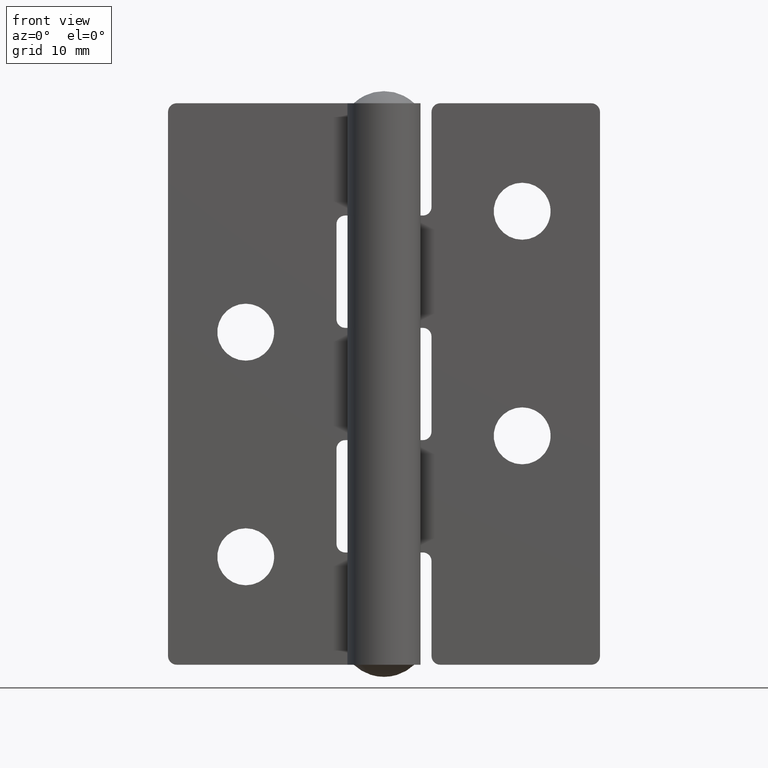
[diagram: clean part render]
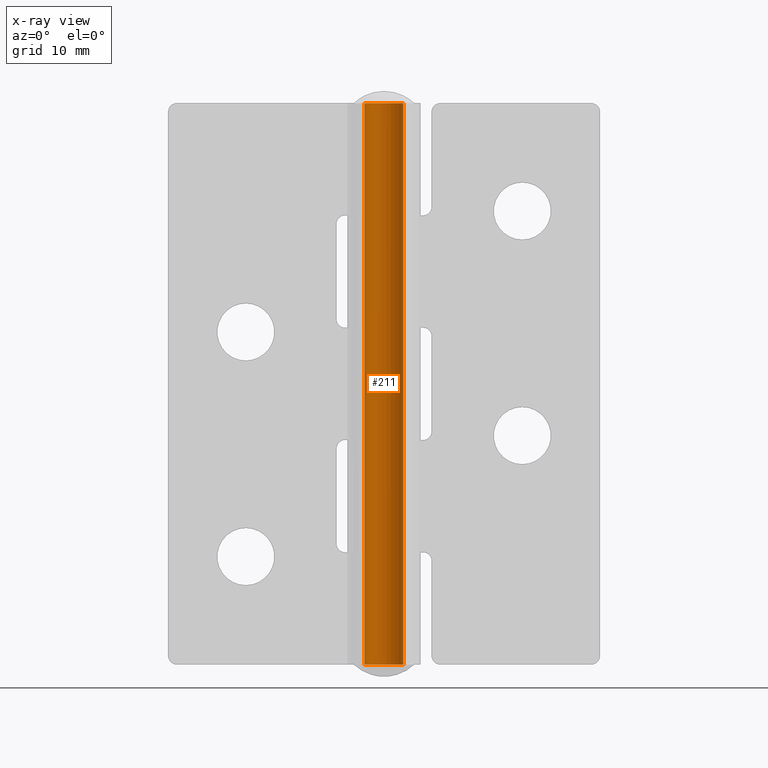
[diagram: x-ray — body ghosted, one internal face saturated and labeled with its STEP entity id]
A machine part, front view, then the same camera in x-ray: the body is ghosted and one INTERNAL B-rep face — a face not visible from any outside direction — is saturated and labeled: STEP entity #211.
In plain terms, the highlighted cylindrical surface (edge-blend (fillet) strip) has radius 2.25 mm, axis along (0, 0, 1).
Its self-contained STEP definition (entity closure, byte-faithful):
#211=ADVANCED_FACE('',(#848),#847,.T.);
#847=CYLINDRICAL_SURFACE('',#1230,2.25000000000E+00);
#848=FACE_OUTER_BOUND('',#1231,.T.);
#1227=CARTESIAN_POINT('',(0.00000000000E+00,0.00000000000E+00,0.00000000000E+00));
#1228=DIRECTION('',(0.00000000000E+00,-0.00000000000E+00,1.00000000000E+00));
#1229=DIRECTION('',(1.00000000000E+00,-0.00000000000E+00,-0.00000000000E+00));
#1230=AXIS2_PLACEMENT_3D('',#1227,#1228,#1229);
#1231=EDGE_LOOP('',(#1609,#1610,#1611,#1612));
#1609=ORIENTED_EDGE('',*,*,#1808,.T.);
#1610=ORIENTED_EDGE('',*,*,#1809,.F.);
#1611=ORIENTED_EDGE('',*,*,#1803,.F.);
#1612=ORIENTED_EDGE('',*,*,#1810,.T.);
#1803=EDGE_CURVE('',#2977,#2978,#2979,.T.);
#1808=EDGE_CURVE('',#3006,#3005,#3013,.T.);
#1809=EDGE_CURVE('',#2978,#3005,#3019,.T.);
#1810=EDGE_CURVE('',#2977,#3006,#3025,.T.);
#2977=VERTEX_POINT('',#3759);
#2978=VERTEX_POINT('',#3760);
#2979=CIRCLE('',#3764,2.25000000000E+00);
#3005=VERTEX_POINT('',#3779);
#3006=VERTEX_POINT('',#3780);
#3013=CIRCLE('',#3788,2.25000000000E+00);
#3019=(BOUNDED_CURVE() B_SPLINE_CURVE(1,(#3789,#3790),.UNSPECIFIED.,.F.,.F.) B_SPLINE_CURVE_WITH_KNOTS((2,2),(8.33333332085E-02,9.16666666563E-01),.UNSPECIFIED.) CURVE() GEOMETRIC_REPRESENTATION_ITEM() RATIONAL_B_SPLINE_CURVE((1.00000000000E+00,1.00000000000E+00)) REPRESENTATION_ITEM('') );
#3025=(BOUNDED_CURVE() B_SPLINE_CURVE(1,(#3791,#3792),.UNSPECIFIED.,.F.,.F.) B_SPLINE_CURVE_WITH_KNOTS((2,2),(8.33333333333E-02,9.16666666667E-01),.UNSPECIFIED.) CURVE() GEOMETRIC_REPRESENTATION_ITEM() RATIONAL_B_SPLINE_CURVE((7.50000000000E-01,7.50000000000E-01)) REPRESENTATION_ITEM('') );
#3759=CARTESIAN_POINT('',(-2.25000000000E+00,0.00000000000E+00,1.40000000000E+00));
#3760=CARTESIAN_POINT('',(2.25000000000E+00,1.48029736617E-16,1.40000000000E+00));
#3761=CARTESIAN_POINT('',(0.00000000000E+00,0.00000000000E+00,1.40000000000E+00));
#3762=DIRECTION('',(-0.00000000000E+00,0.00000000000E+00,-1.00000000000E+00));
#3763=DIRECTION('',(-1.00000000000E+00,-1.22460635382E-16,0.00000000000E+00));
#3764=AXIS2_PLACEMENT_3D('',#3761,#3762,#3763);
#3779=CARTESIAN_POINT('',(2.25000000000E+00,1.48029736617E-16,6.64000000000E+01));
#3780=CARTESIAN_POINT('',(-2.25000000000E+00,0.00000000000E+00,6.64000000000E+01));
#3785=CARTESIAN_POINT('',(0.00000000000E+00,0.00000000000E+00,6.64000000000E+01));
#3786=DIRECTION('',(-0.00000000000E+00,0.00000000000E+00,-1.00000000000E+00));
#3787=DIRECTION('',(-1.00000000000E+00,-1.22460635382E-16,0.00000000000E+00));
#3788=AXIS2_PLACEMENT_3D('',#3785,#3786,#3787);
#3789=CARTESIAN_POINT('',(2.25000000000E+00,0.00000000000E+00,1.39999999026E+00));
#3790=CARTESIAN_POINT('',(2.25000000000E+00,0.00000000000E+00,6.63999999919E+01));
#3791=CARTESIAN_POINT('',(-2.25000000000E+00,-1.48029736617E-16,1.40000000000E+00));
#3792=CARTESIAN_POINT('',(-2.25000000000E+00,-1.48029736617E-16,6.64000000000E+01));